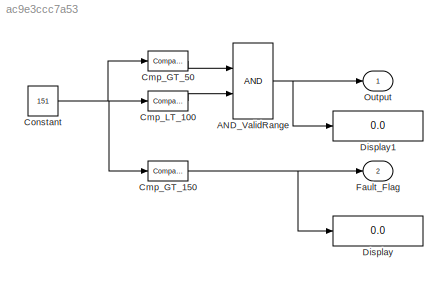
MODEL slx_ac9e3ccc7a53
KIND model
CONFIG AbsTol = auto
CONFIG EnableMultiTasking = off
CONFIG FixedStep = auto
CONFIG MaxStep = auto
CONFIG MinStep = auto
CONFIG RelTol = 1e-3
CONFIG SampleTimeConstraint = Unconstrained
CONFIG SolverName = VariableStepAuto
CONFIG StartTime = 0.0
CONFIG StopTime = 10.0
BLOCK [Logic] AND_ValidRange
  AllPortsSameDT = off
  OutDataTypeStr = boolean
BLOCK [Reference] Cmp_GT_150  REF=simulink/Logic and Bit
Operations/Compare
To Constant
  SourceBlock = simulink/Logic and Bit\nOperations/Compare\nTo Constant
  SourceType = Compare To Constant
BLOCK [Reference] Cmp_GT_50  REF=simulink/Logic and Bit
Operations/Compare
To Constant
  SourceBlock = simulink/Logic and Bit\nOperations/Compare\nTo Constant
  SourceType = Compare To Constant
BLOCK [Reference] Cmp_LT_100  REF=simulink/Logic and Bit
Operations/Compare
To Constant
  SourceBlock = simulink/Logic and Bit\nOperations/Compare\nTo Constant
  SourceType = Compare To Constant
BLOCK [Constant] Constant
  Value = 151
BLOCK [Display] Display
  Decimation = 1
BLOCK [Display] Display1
  Decimation = 1
BLOCK [Outport] Fault_Flag
  Port = 2
BLOCK [Outport] Output
NET AND_ValidRange:1 -> Display1:1, Output:1
NET Cmp_GT_150:1 -> Display:1, Fault_Flag:1
LINE Cmp_GT_50:1 -> AND_ValidRange:1
LINE Cmp_LT_100:1 -> AND_ValidRange:2
NET Constant:1 -> Cmp_GT_150:1, Cmp_GT_50:1, Cmp_LT_100:1
note: NET lines group one-source signal fan-out (src -> all destinations, sorted); 1:1 wires keep LINE
